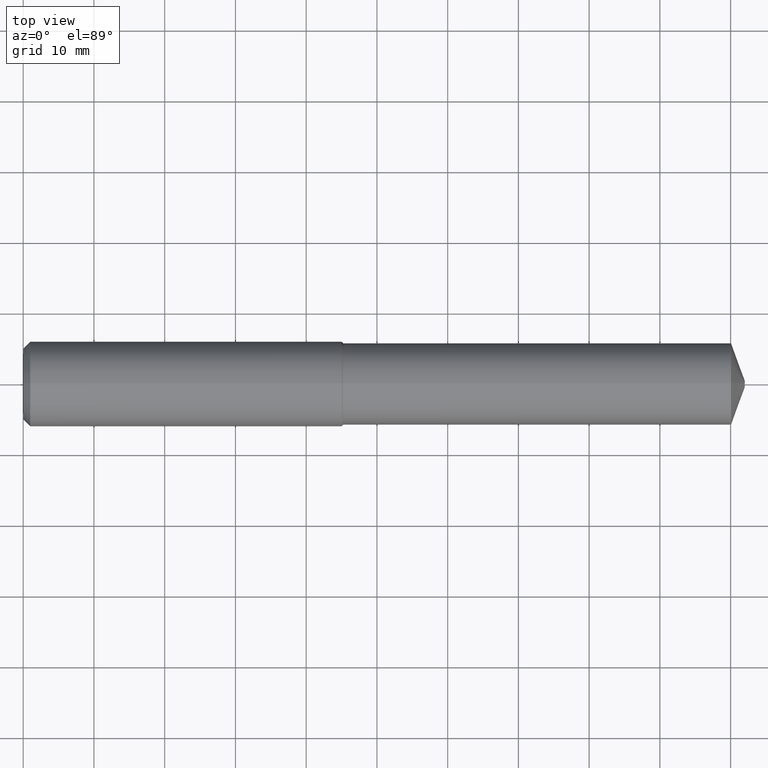
[diagram: clean part render]
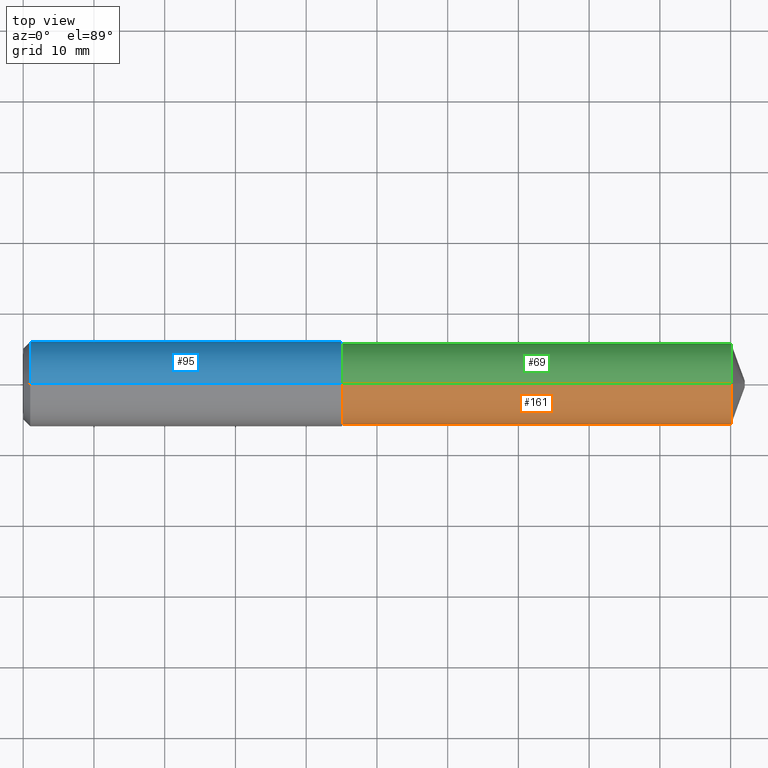
[diagram: same view with three faces highlighted in distinct colors, each labeled with its STEP entity id]
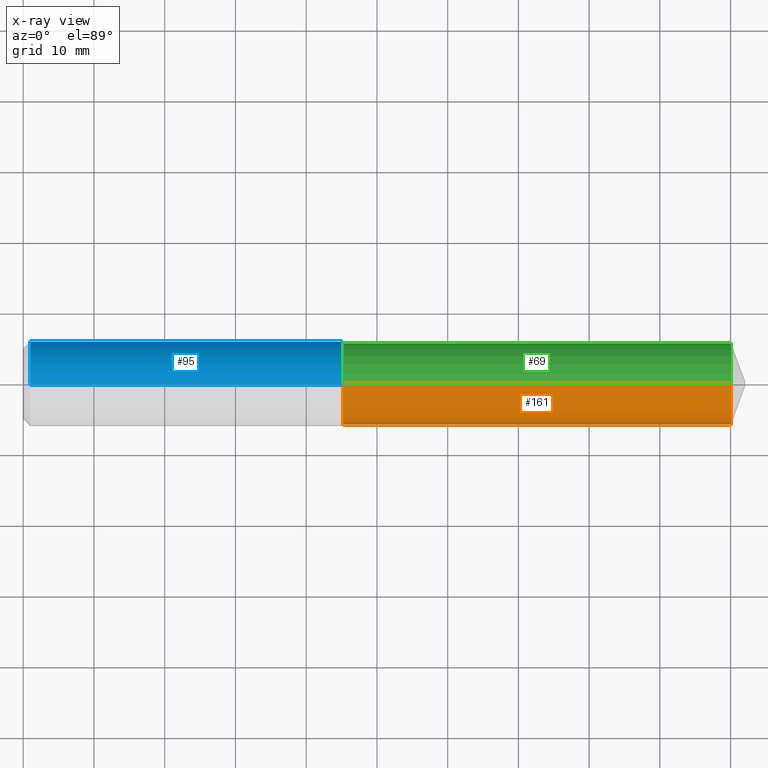
[diagram: x-ray of the same camera — body ghosted, the three highlighted faces saturated]
A machine part, top view with three faces highlighted in distinct colors.
The next image is the same camera in x-ray (body ghosted, the three faces saturated) — at least one of them is partly hidden behind the body in this view.
Their STEP definitions:

[orange] entity #161 — the highlighted cylindrical surface (partial cylindrical patch) has radius 5.7785 mm, axis along (1, -0, -0).
#3 = EDGE_LOOP ( 'NONE', ( #287, #314, #378, #377 ) ) ;
#9 = CARTESIAN_POINT ( 'NONE',  ( 3.939314282300160563, 0.000000000000000000, 0.000000000000000000 ) ) ;
#10 = DIRECTION ( 'NONE',  ( 0.000000000000000000, 0.000000000000000000, -1.000000000000000000 ) ) ;
#32 = VERTEX_POINT ( 'NONE', #352 ) ;
#44 = DIRECTION ( 'NONE',  ( 0.000000000000000000, 0.000000000000000000, -1.000000000000000000 ) ) ;
#49 = LINE ( 'NONE', #217, #119 ) ;
#87 = VERTEX_POINT ( 'NONE', #122 ) ;
#96 = CARTESIAN_POINT ( 'NONE',  ( -0.03808593750000075634, 0.000000000000000000, 0.000000000000000000 ) ) ;
#105 = DIRECTION ( 'NONE',  ( 0.000000000000000000, 0.000000000000000000, -1.000000000000000000 ) ) ;
#106 = VERTEX_POINT ( 'NONE', #236 ) ;
#118 = CIRCLE ( 'NONE', #168, 0.2275000000000002021 ) ;
#119 = VECTOR ( 'NONE', #216, 39.37007874015748143 ) ;
#122 = CARTESIAN_POINT ( 'NONE',  ( 3.939314282300160563, 2.786071468060234087E-17, -0.2275000000000004796 ) ) ;
#129 = CARTESIAN_POINT ( 'NONE',  ( 1.780374015748031447, 0.000000000000000000, 0.000000000000000000 ) ) ;
#135 = EDGE_CURVE ( 'NONE', #106, #171, #156, .T. ) ;
#155 = FACE_OUTER_BOUND ( 'NONE', #3, .T. ) ;
#156 = LINE ( 'NONE', #273, #332 ) ;
#161 = ADVANCED_FACE ( 'NONE', ( #155 ), #266, .T. ) ;
#166 = DIRECTION ( 'NONE',  ( 1.000000000000000000, -0.000000000000000000, -0.000000000000000000 ) ) ;
#168 = AXIS2_PLACEMENT_3D ( 'NONE', #129, #166, #105 ) ;
#171 = VERTEX_POINT ( 'NONE', #185 ) ;
#185 = CARTESIAN_POINT ( 'NONE',  ( 3.939314282300160563, 0.000000000000000000, 0.2275000000000004796 ) ) ;
#210 = DIRECTION ( 'NONE',  ( 1.000000000000000000, -0.000000000000000000, -0.000000000000000000 ) ) ;
#211 = EDGE_CURVE ( 'NONE', #171, #87, #275, .T. ) ;
#216 = DIRECTION ( 'NONE',  ( 1.000000000000000000, -0.000000000000000000, -0.000000000000000000 ) ) ;
#217 = CARTESIAN_POINT ( 'NONE',  ( -0.03808593750000075634, 0.000000000000000000, -0.2275000000000003686 ) ) ;
#236 = CARTESIAN_POINT ( 'NONE',  ( 1.780374015748031447, 2.786071468060232238E-17, 0.2275000000000002021 ) ) ;
#241 = DIRECTION ( 'NONE',  ( 1.000000000000000000, -0.000000000000000000, -0.000000000000000000 ) ) ;
#256 = EDGE_CURVE ( 'NONE', #106, #32, #118, .T. ) ;
#266 = CYLINDRICAL_SURFACE ( 'NONE', #364, 0.2275000000000003686 ) ;
#273 = CARTESIAN_POINT ( 'NONE',  ( -0.03808593750000075634, 2.786071468060232854E-17, 0.2275000000000003686 ) ) ;
#275 = CIRCLE ( 'NONE', #280, 0.2275000000000005074 ) ;
#280 = AXIS2_PLACEMENT_3D ( 'NONE', #9, #241, #10 ) ;
#287 = ORIENTED_EDGE ( 'NONE', *, *, #135, .F. ) ;
#314 = ORIENTED_EDGE ( 'NONE', *, *, #256, .T. ) ;
#329 = DIRECTION ( 'NONE',  ( 1.000000000000000000, -0.000000000000000000, -0.000000000000000000 ) ) ;
#332 = VECTOR ( 'NONE', #329, 39.37007874015748143 ) ;
#341 = EDGE_CURVE ( 'NONE', #32, #87, #49, .T. ) ;
#352 = CARTESIAN_POINT ( 'NONE',  ( 1.780374015748031447, 0.000000000000000000, -0.2275000000000002021 ) ) ;
#364 = AXIS2_PLACEMENT_3D ( 'NONE', #96, #210, #44 ) ;
#377 = ORIENTED_EDGE ( 'NONE', *, *, #211, .F. ) ;
#378 = ORIENTED_EDGE ( 'NONE', *, *, #341, .T. ) ;

[blue] entity #95 — the highlighted cylindrical surface (partial cylindrical patch) has radius 6 mm, axis along (1, -0, -0).
#6 = CARTESIAN_POINT ( 'NONE',  ( -0.03808593750000075634, 2.892866454678788763E-17, 0.2362204724409450174 ) ) ;
#12 = CARTESIAN_POINT ( 'NONE',  ( 1.771653543307086576, 0.000000000000000000, 0.000000000000000000 ) ) ;
#17 = ORIENTED_EDGE ( 'NONE', *, *, #38, .F. ) ;
#33 = DIRECTION ( 'NONE',  ( 1.000000000000000000, -0.000000000000000000, -0.000000000000000000 ) ) ;
#38 = EDGE_CURVE ( 'NONE', #133, #148, #57, .T. ) ;
#41 = CARTESIAN_POINT ( 'NONE',  ( -0.03808593750000075634, 0.000000000000000000, 0.000000000000000000 ) ) ;
#42 = CARTESIAN_POINT ( 'NONE',  ( 1.771653543307086576, 0.000000000000000000, 0.2362204724409451007 ) ) ;
#57 = LINE ( 'NONE', #291, #237 ) ;
#60 = DIRECTION ( 'NONE',  ( 0.000000000000000000, 0.000000000000000000, -1.000000000000000000 ) ) ;
#64 = LINE ( 'NONE', #6, #152 ) ;
#72 = AXIS2_PLACEMENT_3D ( 'NONE', #12, #366, #304 ) ;
#80 = EDGE_CURVE ( 'NONE', #133, #327, #130, .T. ) ;
#88 = DIRECTION ( 'NONE',  ( 1.000000000000000000, -0.000000000000000000, -0.000000000000000000 ) ) ;
#94 = DIRECTION ( 'NONE',  ( 0.000000000000000000, 0.000000000000000000, -1.000000000000000000 ) ) ;
#95 = ADVANCED_FACE ( 'NONE', ( #153 ), #331, .T. ) ;
#108 = AXIS2_PLACEMENT_3D ( 'NONE', #123, #88, #94 ) ;
#123 = CARTESIAN_POINT ( 'NONE',  ( 0.03937007874015747977, 0.000000000000000000, 0.000000000000000000 ) ) ;
#130 = CIRCLE ( 'NONE', #108, 0.2362204724409449619 ) ;
#133 = VERTEX_POINT ( 'NONE', #363 ) ;
#137 = EDGE_LOOP ( 'NONE', ( #248, #245, #374, #17 ) ) ;
#145 = EDGE_CURVE ( 'NONE', #148, #167, #324, .T. ) ;
#148 = VERTEX_POINT ( 'NONE', #160 ) ;
#152 = VECTOR ( 'NONE', #233, 39.37007874015748143 ) ;
#153 = FACE_OUTER_BOUND ( 'NONE', #137, .T. ) ;
#160 = CARTESIAN_POINT ( 'NONE',  ( 1.771653543307086576, 2.892866454678789379E-17, -0.2362204724409451007 ) ) ;
#167 = VERTEX_POINT ( 'NONE', #42 ) ;
#176 = EDGE_CURVE ( 'NONE', #327, #167, #64, .T. ) ;
#215 = CARTESIAN_POINT ( 'NONE',  ( 0.03937007874015747977, 2.892866454678788147E-17, 0.2362204724409449619 ) ) ;
#233 = DIRECTION ( 'NONE',  ( 1.000000000000000000, -0.000000000000000000, -0.000000000000000000 ) ) ;
#237 = VECTOR ( 'NONE', #33, 39.37007874015748143 ) ;
#245 = ORIENTED_EDGE ( 'NONE', *, *, #176, .T. ) ;
#248 = ORIENTED_EDGE ( 'NONE', *, *, #80, .T. ) ;
#291 = CARTESIAN_POINT ( 'NONE',  ( -0.03808593750000075634, 0.000000000000000000, -0.2362204724409450174 ) ) ;
#304 = DIRECTION ( 'NONE',  ( 0.000000000000000000, 0.000000000000000000, -1.000000000000000000 ) ) ;
#324 = CIRCLE ( 'NONE', #72, 0.2362204724409451007 ) ;
#327 = VERTEX_POINT ( 'NONE', #215 ) ;
#331 = CYLINDRICAL_SURFACE ( 'NONE', #372, 0.2362204724409450174 ) ;
#337 = DIRECTION ( 'NONE',  ( 1.000000000000000000, -0.000000000000000000, -0.000000000000000000 ) ) ;
#363 = CARTESIAN_POINT ( 'NONE',  ( 0.03937007874015747977, 0.000000000000000000, -0.2362204724409449619 ) ) ;
#366 = DIRECTION ( 'NONE',  ( 1.000000000000000000, -0.000000000000000000, -0.000000000000000000 ) ) ;
#372 = AXIS2_PLACEMENT_3D ( 'NONE', #41, #337, #60 ) ;
#374 = ORIENTED_EDGE ( 'NONE', *, *, #145, .F. ) ;

[green] entity #69 — the highlighted cylindrical surface (partial cylindrical patch) has radius 5.7785 mm, axis along (1, -0, -0).
#7 = DIRECTION ( 'NONE',  ( 0.000000000000000000, 0.000000000000000000, -1.000000000000000000 ) ) ;
#22 = ORIENTED_EDGE ( 'NONE', *, *, #63, .F. ) ;
#32 = VERTEX_POINT ( 'NONE', #352 ) ;
#49 = LINE ( 'NONE', #217, #119 ) ;
#52 = DIRECTION ( 'NONE',  ( 1.000000000000000000, -0.000000000000000000, -0.000000000000000000 ) ) ;
#63 = EDGE_CURVE ( 'NONE', #87, #171, #224, .T. ) ;
#65 = DIRECTION ( 'NONE',  ( 1.000000000000000000, -0.000000000000000000, -0.000000000000000000 ) ) ;
#69 = ADVANCED_FACE ( 'NONE', ( #323 ), #336, .T. ) ;
#82 = CARTESIAN_POINT ( 'NONE',  ( 3.939314282300160563, 0.000000000000000000, 0.000000000000000000 ) ) ;
#84 = AXIS2_PLACEMENT_3D ( 'NONE', #205, #65, #7 ) ;
#87 = VERTEX_POINT ( 'NONE', #122 ) ;
#106 = VERTEX_POINT ( 'NONE', #236 ) ;
#116 = ORIENTED_EDGE ( 'NONE', *, *, #341, .F. ) ;
#119 = VECTOR ( 'NONE', #216, 39.37007874015748143 ) ;
#122 = CARTESIAN_POINT ( 'NONE',  ( 3.939314282300160563, 2.786071468060234087E-17, -0.2275000000000004796 ) ) ;
#135 = EDGE_CURVE ( 'NONE', #106, #171, #156, .T. ) ;
#139 = DIRECTION ( 'NONE',  ( 0.000000000000000000, 0.000000000000000000, -1.000000000000000000 ) ) ;
#150 = ORIENTED_EDGE ( 'NONE', *, *, #246, .T. ) ;
#156 = LINE ( 'NONE', #273, #332 ) ;
#171 = VERTEX_POINT ( 'NONE', #185 ) ;
#185 = CARTESIAN_POINT ( 'NONE',  ( 3.939314282300160563, 0.000000000000000000, 0.2275000000000004796 ) ) ;
#190 = CARTESIAN_POINT ( 'NONE',  ( 1.780374015748031447, 0.000000000000000000, 0.000000000000000000 ) ) ;
#195 = EDGE_LOOP ( 'NONE', ( #150, #199, #22, #116 ) ) ;
#199 = ORIENTED_EDGE ( 'NONE', *, *, #135, .T. ) ;
#205 = CARTESIAN_POINT ( 'NONE',  ( -0.03808593750000075634, 0.000000000000000000, 0.000000000000000000 ) ) ;
#207 = AXIS2_PLACEMENT_3D ( 'NONE', #190, #312, #139 ) ;
#216 = DIRECTION ( 'NONE',  ( 1.000000000000000000, -0.000000000000000000, -0.000000000000000000 ) ) ;
#217 = CARTESIAN_POINT ( 'NONE',  ( -0.03808593750000075634, 0.000000000000000000, -0.2275000000000003686 ) ) ;
#224 = CIRCLE ( 'NONE', #338, 0.2275000000000005074 ) ;
#236 = CARTESIAN_POINT ( 'NONE',  ( 1.780374015748031447, 2.786071468060232238E-17, 0.2275000000000002021 ) ) ;
#246 = EDGE_CURVE ( 'NONE', #32, #106, #354, .T. ) ;
#253 = DIRECTION ( 'NONE',  ( 0.000000000000000000, 0.000000000000000000, -1.000000000000000000 ) ) ;
#273 = CARTESIAN_POINT ( 'NONE',  ( -0.03808593750000075634, 2.786071468060232854E-17, 0.2275000000000003686 ) ) ;
#312 = DIRECTION ( 'NONE',  ( 1.000000000000000000, -0.000000000000000000, -0.000000000000000000 ) ) ;
#323 = FACE_OUTER_BOUND ( 'NONE', #195, .T. ) ;
#329 = DIRECTION ( 'NONE',  ( 1.000000000000000000, -0.000000000000000000, -0.000000000000000000 ) ) ;
#332 = VECTOR ( 'NONE', #329, 39.37007874015748143 ) ;
#336 = CYLINDRICAL_SURFACE ( 'NONE', #84, 0.2275000000000003686 ) ;
#338 = AXIS2_PLACEMENT_3D ( 'NONE', #82, #52, #253 ) ;
#341 = EDGE_CURVE ( 'NONE', #32, #87, #49, .T. ) ;
#352 = CARTESIAN_POINT ( 'NONE',  ( 1.780374015748031447, 0.000000000000000000, -0.2275000000000002021 ) ) ;
#354 = CIRCLE ( 'NONE', #207, 0.2275000000000002021 ) ;